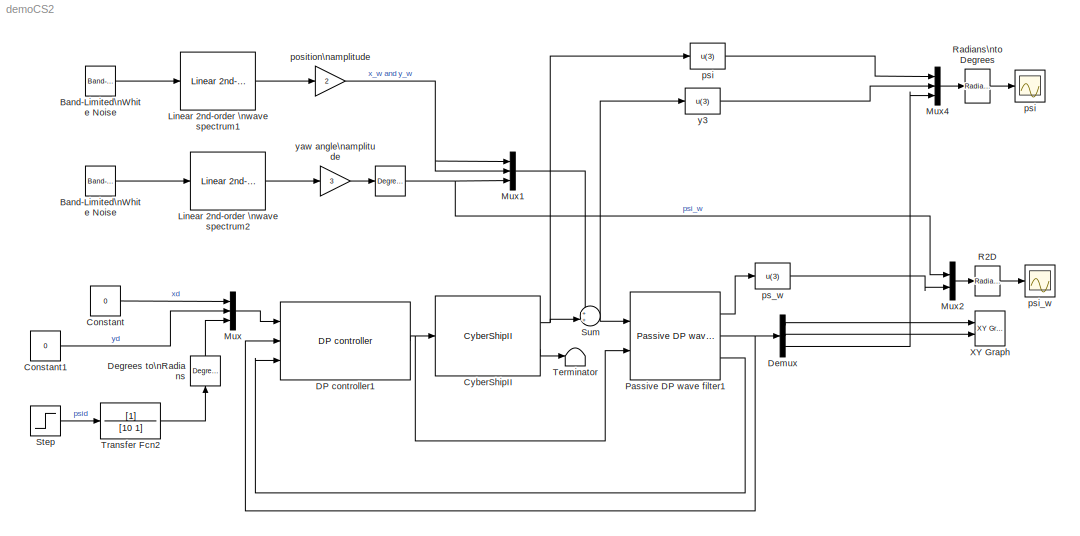
MODEL demoCS2
KIND model
BLOCK [Reference]      REF=simulink_extras/Transformations/Degrees to\nRadians
  FunctionWithSeparateData = off
  Ports = [1, 1]
  RTWMemSecDataConstants = Inherit from model
  RTWMemSecDataInternal = Inherit from model
  RTWMemSecDataParameters = Inherit from model
  RTWMemSecFuncExecute = Inherit from model
  RTWMemSecFuncInitTerm = Inherit from model
  ShowPortLabels = FromPortIcon
  SourceBlock = simulink_extras/Transformations/Degrees to\nRadians
  SourceType = DegreesToRadians
  SystemSampleTime = -1
BLOCK [Reference] Band-Limited\nWhite Noise  REF=simulink/Sources/Band-Limited\nWhite Noise
  Cov = [1]
  FunctionWithSeparateData = off
  Ports = [0, 1]
  RTWMemSecDataConstants = Inherit from model
  RTWMemSecDataInternal = Inherit from model
  RTWMemSecDataParameters = Inherit from model
  RTWMemSecFuncExecute = Inherit from model
  RTWMemSecFuncInitTerm = Inherit from model
  ShowPortLabels = FromPortIcon
  SourceBlock = simulink/Sources/Band-Limited\nWhite Noise
  SourceType = Band-Limited White Noise.
  SystemSampleTime = -1
  Ts = 0.1
  VectorParams1D = on
  seed = [23341]
BLOCK [Reference] Band-Limited\nWhite Noise    REF=simulink/Sources/Band-Limited\nWhite Noise
  Cov = [1]
  FunctionWithSeparateData = off
  Ports = [0, 1]
  RTWMemSecDataConstants = Inherit from model
  RTWMemSecDataInternal = Inherit from model
  RTWMemSecDataParameters = Inherit from model
  RTWMemSecFuncExecute = Inherit from model
  RTWMemSecFuncInitTerm = Inherit from model
  ShowPortLabels = FromPortIcon
  SourceBlock = simulink/Sources/Band-Limited\nWhite Noise
  SourceType = Band-Limited White Noise.
  SystemSampleTime = -1
  Ts = 0.1
  VectorParams1D = on
  seed = [23341]
BLOCK [Constant] Constant
  Value = 0
BLOCK [Constant] Constant1
  Value = 0
BLOCK [Reference] CyberShipII  REF=marine_gnc/Examples/Vessels/CyberShipII  (lib defined in mdl_10d96c221ba8, mdl_45f1105420c6)
  FunctionWithSeparateData = off
  Ports = [1, 2]
  RTWMemSecDataConstants = Inherit from model
  RTWMemSecDataInternal = Inherit from model
  RTWMemSecDataParameters = Inherit from model
  RTWMemSecFuncExecute = Inherit from model
  RTWMemSecFuncInitTerm = Inherit from model
  ShowPortLabels = FromPortIcon
  SourceBlock = marine_gnc/Examples/Vessels/CyberShipII
  SystemSampleTime = -1
BLOCK [Reference] DP controller1  REF=marine_gnc/Control/Dynamic \nPositioning /DP controller  (lib defined in mdl_10d96c221ba8, mdl_45f1105420c6)
  FunctionWithSeparateData = off
  Kd = 2*0.8*0.1*[25.8000 0  0;  0  33.8000  1.0115;  0  1.0115  2.7600 ]
  Ki = (0.1^3/10)*[25.8000 0  0;  0  33.8000  1.0115;  0  1.0115  2.7600 ]
  Kp = (0.1)^2*[25.8000 0  0;  0  33.8000  1.0115;  0  1.0115  2.7600 ]
  Ports = [3, 1]
  RTWMemSecDataConstants = Inherit from model
  RTWMemSecDataInternal = Inherit from model
  RTWMemSecDataParameters = Inherit from model
  RTWMemSecFuncExecute = Inherit from model
  RTWMemSecFuncInitTerm = Inherit from model
  ShowPortLabels = FromPortIcon
  SourceBlock = marine_gnc/Control/Dynamic \nPositioning /DP controller
  SourceType = Nonlinear DP Controller
  SystemSampleTime = -1
BLOCK [Reference] Degrees to\nRadians  REF=simulink_extras/Transformations/Degrees to\nRadians
  FunctionWithSeparateData = off
  Ports = [1, 1]
  RTWMemSecDataConstants = Inherit from model
  RTWMemSecDataInternal = Inherit from model
  RTWMemSecDataParameters = Inherit from model
  RTWMemSecFuncExecute = Inherit from model
  RTWMemSecFuncInitTerm = Inherit from model
  ShowPortLabels = FromPortIcon
  SourceBlock = simulink_extras/Transformations/Degrees to\nRadians
  SourceType = DegreesToRadians
  SystemSampleTime = -1
BLOCK [Demux] Demux
  Outputs = 3
  Ports = [1, 3]
BLOCK [Reference] Linear 2nd-order \nwave spectrum1  REF=marine_gnc/Environment/Waves/Linear 2nd-order \nwave spectrum  (lib defined in mdl_10d96c221ba8, mdl_45f1105420c6)
  FunctionWithSeparateData = off
  Ports = [1, 1]
  RTWMemSecDataConstants = Inherit from model
  RTWMemSecDataInternal = Inherit from model
  RTWMemSecDataParameters = Inherit from model
  RTWMemSecFuncExecute = Inherit from model
  RTWMemSecFuncInitTerm = Inherit from model
  ShowPortLabels = FromPortIcon
  SourceBlock = marine_gnc/Environment/Waves/Linear 2nd-order \nwave spectrum
  SystemSampleTime = -1
  lambda = 0.1
  sigma = 0.5
  w_0 = 0.8
BLOCK [Reference] Linear 2nd-order \nwave spectrum2  REF=marine_gnc/Environment/Waves/Linear 2nd-order \nwave spectrum  (lib defined in mdl_10d96c221ba8, mdl_45f1105420c6)
  FunctionWithSeparateData = off
  Ports = [1, 1]
  RTWMemSecDataConstants = Inherit from model
  RTWMemSecDataInternal = Inherit from model
  RTWMemSecDataParameters = Inherit from model
  RTWMemSecFuncExecute = Inherit from model
  RTWMemSecFuncInitTerm = Inherit from model
  ShowPortLabels = FromPortIcon
  SourceBlock = marine_gnc/Environment/Waves/Linear 2nd-order \nwave spectrum
  SystemSampleTime = -1
  lambda = 0.1
  sigma = 0.5
  w_0 = 0.8
BLOCK [Mux] Mux
  DisplayOption = bar
  Inputs = 3
  Ports = [3, 1]
BLOCK [Mux] Mux1
  DisplayOption = bar
  Inputs = 3
  Ports = [3, 1]
BLOCK [Mux] Mux2
  DisplayOption = bar
  Inputs = 2
  Ports = [2, 1]
BLOCK [Mux] Mux4
  DisplayOption = bar
  Inputs = 3
  Ports = [3, 1]
BLOCK [Reference] Passive DP wave filter1  REF=marine_gnc/Navigation/Observers/Passive DP wave filter  (lib defined in mdl_10d96c221ba8, mdl_45f1105420c6)
  D = [2 0  0;  0 7 0.1; 0 0.1 0.5]
  FunctionWithSeparateData = off
  K3 = 0.1*diag([1 1 0.1])
  K4 = 0.1*diag([1 1 0.1])
  M = [ 25.8000   0    0;   0   33.8000   1.0115; 0   1.0115    2.7600 ]
  Ports = [2, 3]
  RTWMemSecDataConstants = Inherit from model
  RTWMemSecDataInternal = Inherit from model
  RTWMemSecDataParameters = Inherit from model
  RTWMemSecFuncExecute = Inherit from model
  RTWMemSecFuncInitTerm = Inherit from model
  ShowPortLabels = FromPortIcon
  SourceBlock = marine_gnc/Navigation/Observers/Passive DP wave filter
  SystemSampleTime = -1
  T_b = diag([100 100 100])
  lambda = 0.1*diag([1 1 1])
  w_c = 1.3*diag([0.8 0.8 0.8])
  w_o = diag([0.8 0.8 0.8])
BLOCK [Reference] R2D  REF=simulink_extras/Transformations/Radians\nto Degrees
  FunctionWithSeparateData = off
  Ports = [1, 1]
  RTWMemSecDataConstants = Inherit from model
  RTWMemSecDataInternal = Inherit from model
  RTWMemSecDataParameters = Inherit from model
  RTWMemSecFuncExecute = Inherit from model
  RTWMemSecFuncInitTerm = Inherit from model
  ShowPortLabels = FromPortIcon
  SourceBlock = simulink_extras/Transformations/Radians\nto Degrees
  SourceType = RadiansToDegrees
  SystemSampleTime = -1
BLOCK [Reference] Radians\nto Degrees  REF=simulink_extras/Transformations/Radians\nto Degrees
  FunctionWithSeparateData = off
  Ports = [1, 1]
  RTWMemSecDataConstants = Inherit from model
  RTWMemSecDataInternal = Inherit from model
  RTWMemSecDataParameters = Inherit from model
  RTWMemSecFuncExecute = Inherit from model
  RTWMemSecFuncInitTerm = Inherit from model
  ShowPortLabels = FromPortIcon
  SourceBlock = simulink_extras/Transformations/Radians\nto Degrees
  SourceType = RadiansToDegrees
  SystemSampleTime = -1
BLOCK [Step] Step
  After = 10
  SampleTime = 0
  Time = 30
BLOCK [Sum] Sum  
  IconShape = round
  Inputs = ++|
  Ports = [2, 1]
BLOCK [Terminator] Terminator
BLOCK [TransferFcn] Transfer Fcn2
  Denominator = [10 1]
BLOCK [Reference] XY Graph  REF=simulink/Sinks/XY Graph
  FunctionWithSeparateData = off
  Ports = [2]
  RTWMemSecDataConstants = Inherit from model
  RTWMemSecDataInternal = Inherit from model
  RTWMemSecDataParameters = Inherit from model
  RTWMemSecFuncExecute = Inherit from model
  RTWMemSecFuncInitTerm = Inherit from model
  ShowPortLabels = FromPortIcon
  SourceBlock = simulink/Sinks/XY Graph
  SourceType = XY scope.
  SystemSampleTime = -1
  st = -1
  xmax = 10
  xmin = -10
  ymax = 10
  ymin = -10
BLOCK [Gain] position\namplitude 
  Gain = 2
BLOCK [Fcn] ps_w
  Expr = u(3)
BLOCK [Fcn] psi
  Expr = u(3)
BLOCK [Scope] psi  
  DataFormat = StructureWithTime
  Floating = off
  NumInputPorts = 1
  Ports = [1]
  SampleTime = 0
  TimeRange = 200
  YMax = 20
BLOCK [Scope] psi_w
  DataFormat = StructureWithTime
  Floating = off
  NumInputPorts = 1
  Ports = [1]
  SampleTime = 0
  SaveName = ScopeData1
  TimeRange = 200
  YMax = 6
  YMin = -6
BLOCK [Fcn] y3
  Expr = u(3)
BLOCK [Gain] yaw angle\namplitude
  Gain = 3
NET    :1 -> Mux1:3, Mux2:1
LINE Band-Limited\nWhite Noise  :1 -> Linear 2nd-order \nwave spectrum1:1
LINE Band-Limited\nWhite Noise:1 -> Linear 2nd-order \nwave spectrum2:1
LINE Constant1:1 -> Mux:2
LINE Constant:1 -> Mux:1
NET CyberShipII:1 -> Sum  :2, psi:1
LINE CyberShipII:2 -> Terminator:1
NET DP controller1:1 -> CyberShipII:1, Passive DP wave filter1:2
LINE Degrees to\nRadians:1 -> Mux:3
LINE Demux:1 -> XY Graph:1
LINE Demux:2 -> XY Graph:2
LINE Demux:3 -> Mux4:3
LINE Linear 2nd-order \nwave spectrum1:1 -> position\namplitude :1
LINE Linear 2nd-order \nwave spectrum2:1 -> yaw angle\namplitude:1
LINE Mux1:1 -> Sum  :1
LINE Mux2:1 -> R2D:1
LINE Mux4:1 -> Radians\nto Degrees:1
LINE Mux:1 -> DP controller1:1
LINE Passive DP wave filter1:1 -> ps_w:1
NET Passive DP wave filter1:2 -> DP controller1:2, Demux:1
LINE Passive DP wave filter1:3 -> DP controller1:3
LINE R2D:1 -> psi_w:1
LINE Radians\nto Degrees:1 -> psi  :1
LINE Step:1 -> Transfer Fcn2:1
NET Sum  :1 -> Passive DP wave filter1:1, y3:1
LINE Transfer Fcn2:1 -> Degrees to\nRadians:1
NET position\namplitude :1 -> Mux1:1, Mux1:2
LINE ps_w:1 -> Mux2:2
LINE psi:1 -> Mux4:1
LINE y3:1 -> Mux4:2
LINE yaw angle\namplitude:1 ->    :1
note: NET lines group one-source signal fan-out (src -> all destinations, sorted); 1:1 wires keep LINE
